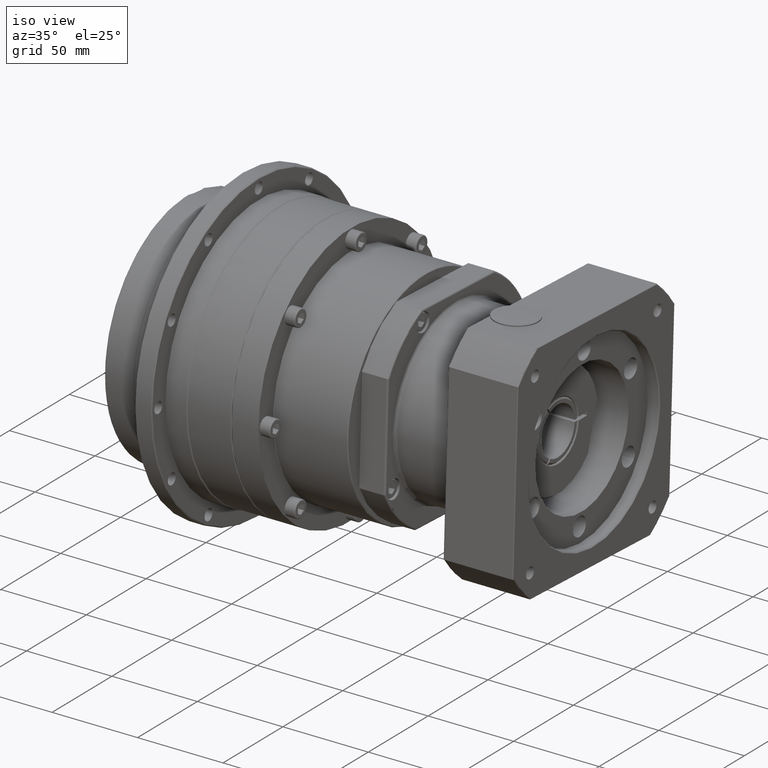
[diagram: clean part render]
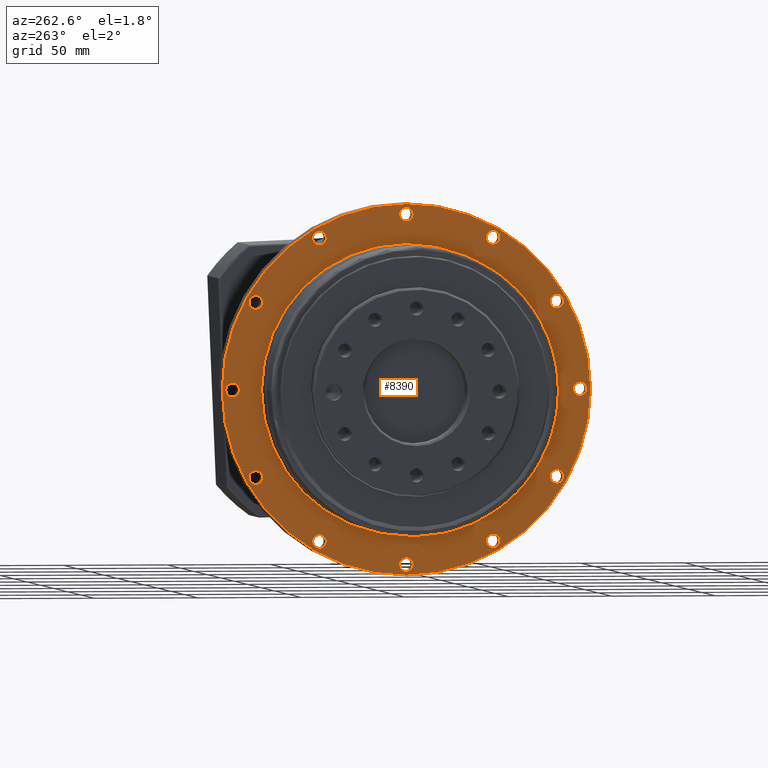
[diagram: tour spotlight — one face highlighted and labeled with its STEP entity id]
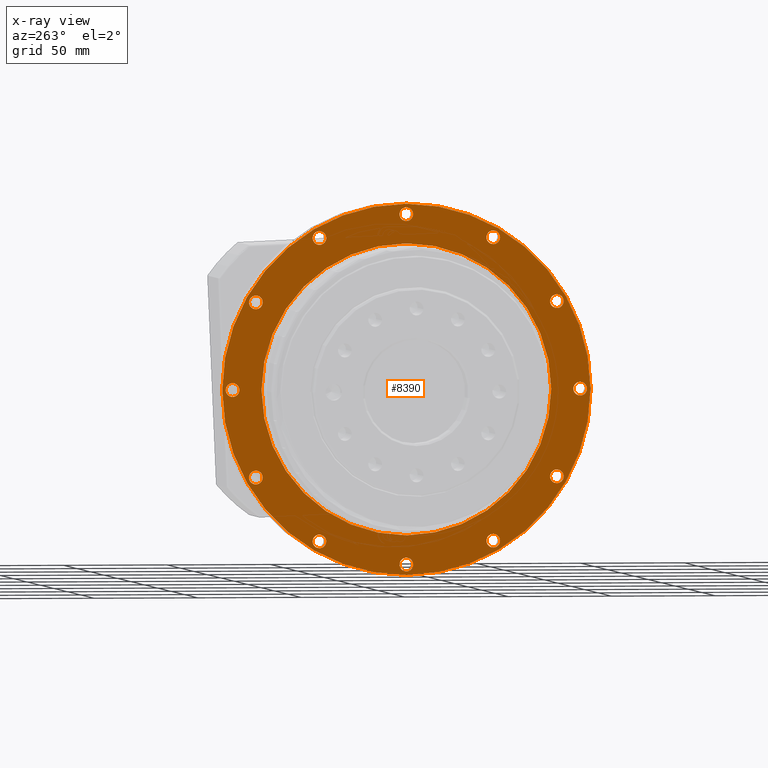
[diagram: x-ray of the same camera — body ghosted, this tour face saturated]
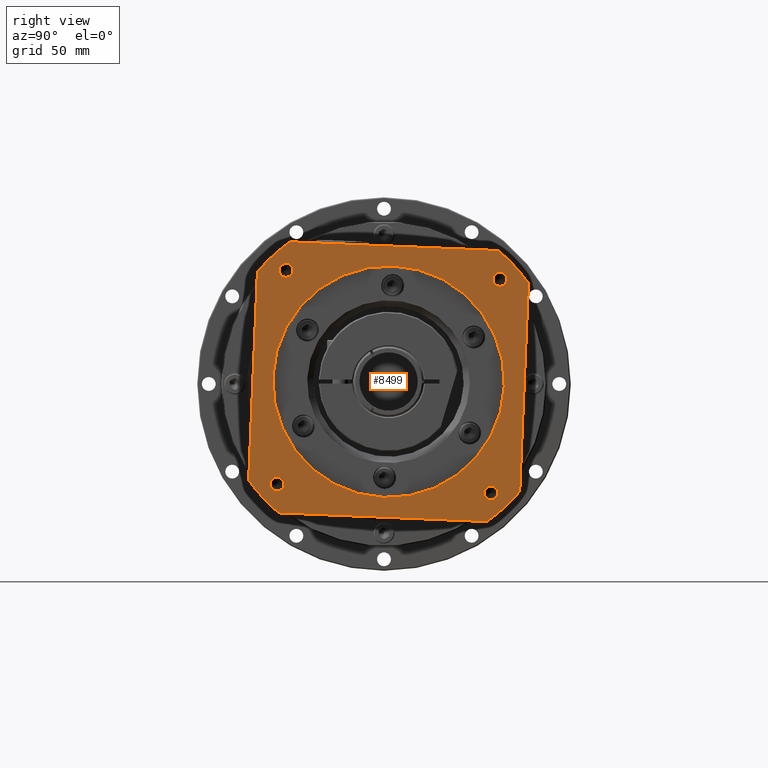
[diagram: tour spotlight — one face highlighted and labeled with its STEP entity id]
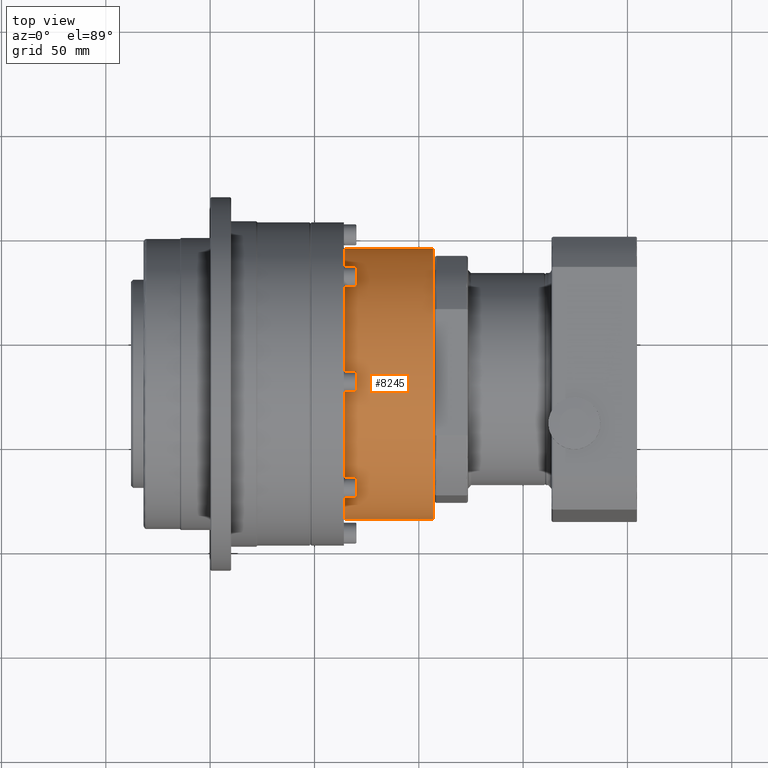
[diagram: tour spotlight — one face highlighted and labeled with its STEP entity id]
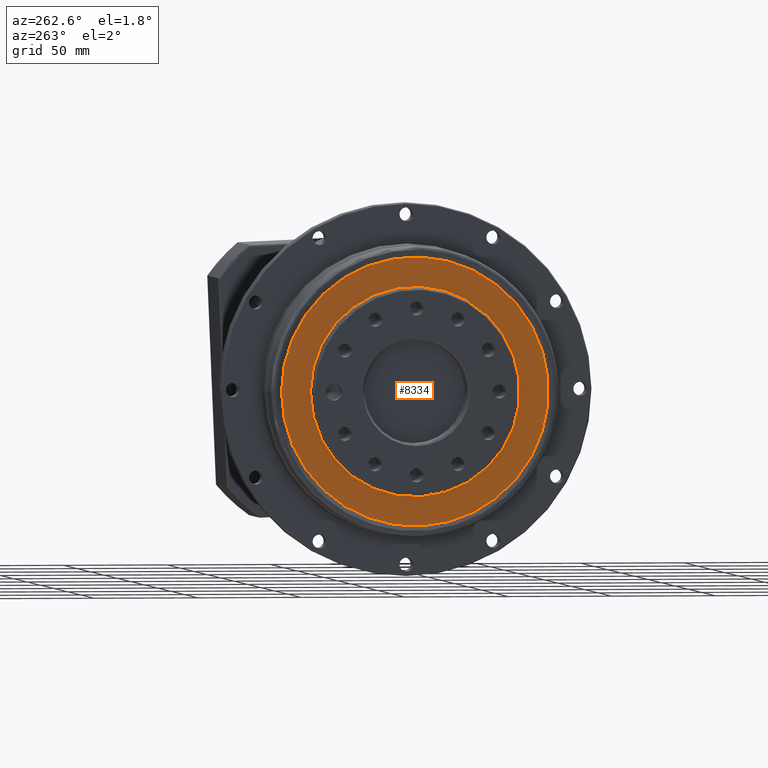
[diagram: tour spotlight — one face highlighted and labeled with its STEP entity id]
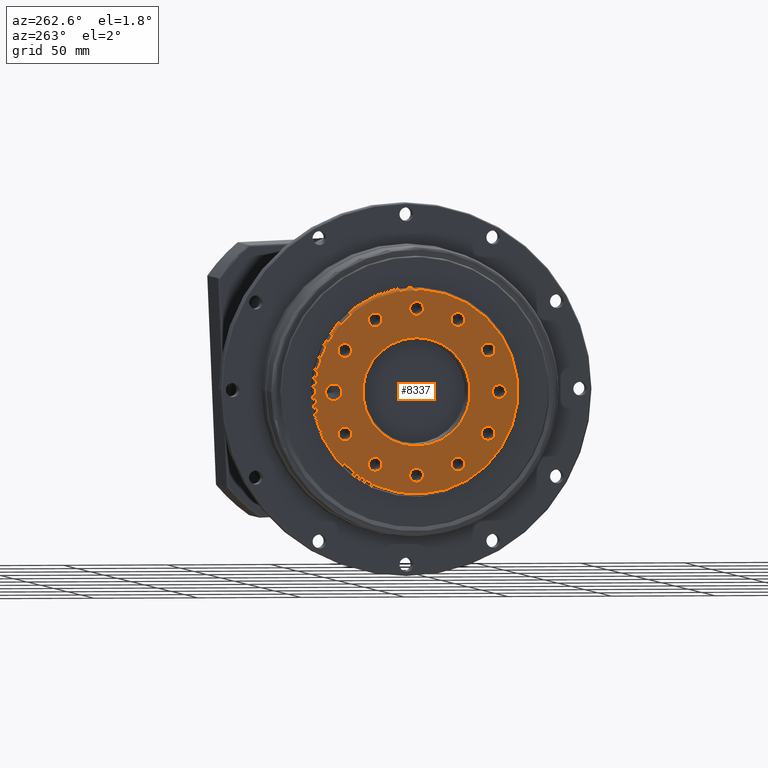
[diagram: tour spotlight — one face highlighted and labeled with its STEP entity id]
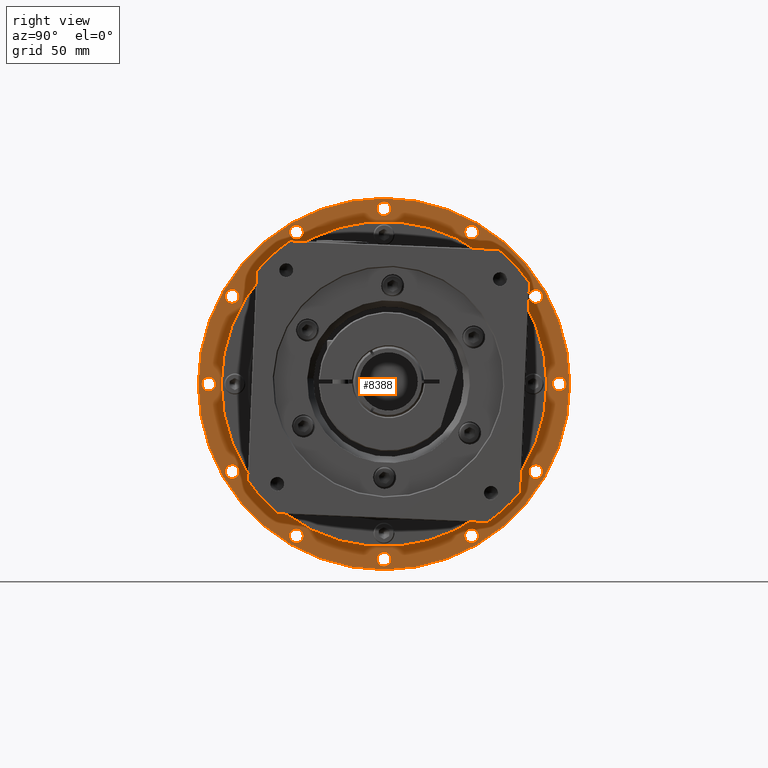
[diagram: tour spotlight — one face highlighted and labeled with its STEP entity id]
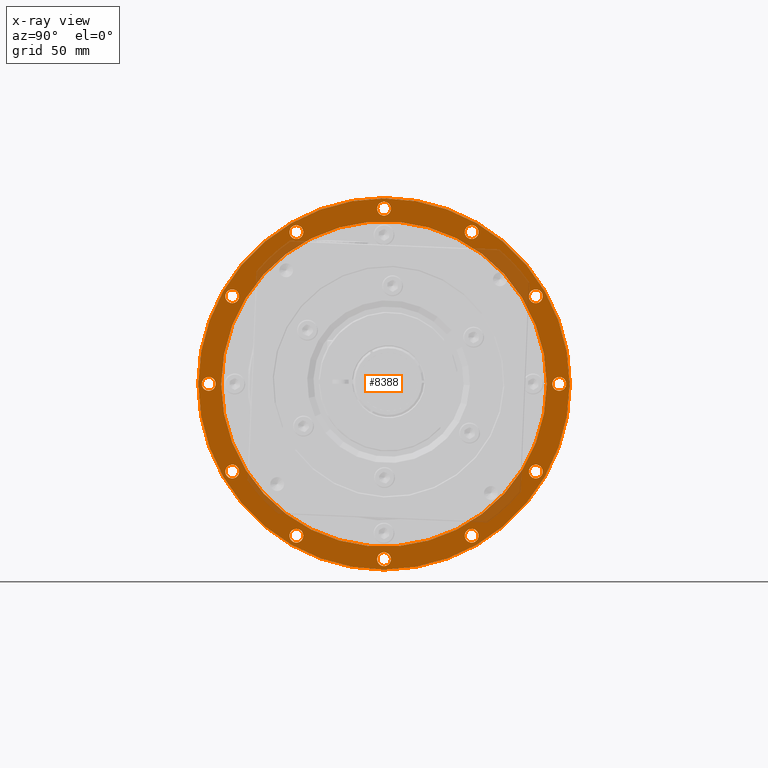
[diagram: x-ray of the same camera — body ghosted, this tour face saturated]
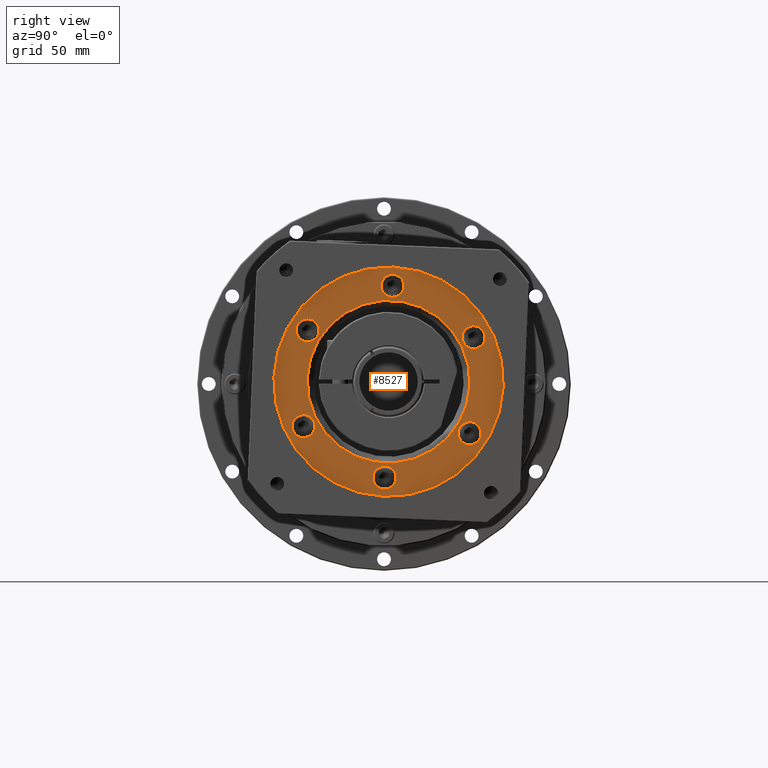
[diagram: tour spotlight — one face highlighted and labeled with its STEP entity id]
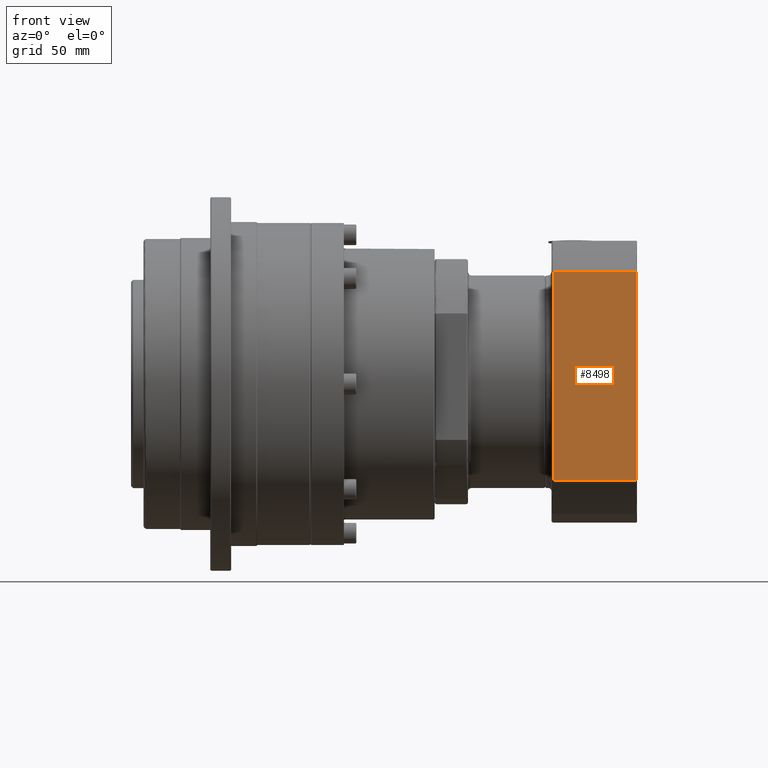
[diagram: tour spotlight — one face highlighted and labeled with its STEP entity id]
A machine part: a face-by-face anatomy tour. The part has 598 B-rep faces; the first image is the clean iso view, then the 8 largest visible faces are spotlighted one at a time (largest first), each with its STEP entity span.

Face 1 — auxiliary view, entity #8390. An x-ray twin of the same camera follows (body ghosted, this face saturated) — the face is partly hidden behind the body. In plain terms, the highlighted planar face has unit normal (-1, -0, -0).
Definition (entity closure, byte-faithful):
#396=PLANE('',#9261);
#805=FACE_BOUND('',#2041,.T.);
#806=FACE_BOUND('',#2042,.T.);
#807=FACE_BOUND('',#2043,.T.);
#808=FACE_BOUND('',#2044,.T.);
#809=FACE_BOUND('',#2045,.T.);
#810=FACE_BOUND('',#2046,.T.);
#811=FACE_BOUND('',#2047,.T.);
#812=FACE_BOUND('',#2048,.T.);
#813=FACE_BOUND('',#2049,.T.);
#814=FACE_BOUND('',#2050,.T.);
#815=FACE_BOUND('',#2051,.T.);
#816=FACE_BOUND('',#2052,.T.);
#817=FACE_BOUND('',#2053,.T.);
#1281=FACE_OUTER_BOUND('',#2040,.T.);
#2040=EDGE_LOOP('',(#6484));
#2041=EDGE_LOOP('',(#6485));
#2042=EDGE_LOOP('',(#6486));
#2043=EDGE_LOOP('',(#6487));
#2044=EDGE_LOOP('',(#6488));
#2045=EDGE_LOOP('',(#6489));
#2046=EDGE_LOOP('',(#6490));
#2047=EDGE_LOOP('',(#6491));
#2048=EDGE_LOOP('',(#6492));
#2049=EDGE_LOOP('',(#6493));
#2050=EDGE_LOOP('',(#6494));
#2051=EDGE_LOOP('',(#6495));
#2052=EDGE_LOOP('',(#6496));
#2053=EDGE_LOOP('',(#6497));
#2769=CIRCLE('',#9206,3.3);
#2771=CIRCLE('',#9209,3.3);
#2773=CIRCLE('',#9212,3.3);
#2775=CIRCLE('',#9215,3.3);
#2777=CIRCLE('',#9218,3.3);
#2779=CIRCLE('',#9221,3.3);
#2781=CIRCLE('',#9224,3.3);
#2783=CIRCLE('',#9227,3.3);
#2785=CIRCLE('',#9230,3.3);
#2787=CIRCLE('',#9233,3.3);
#2789=CIRCLE('',#9236,3.3);
#2791=CIRCLE('',#9239,3.3);
#2803=CIRCLE('',#9260,89.);
#2804=CIRCLE('',#9262,70.);
#4117=VERTEX_POINT('',#13609);
#4119=VERTEX_POINT('',#13614);
#4121=VERTEX_POINT('',#13619);
#4123=VERTEX_POINT('',#13624);
#4125=VERTEX_POINT('',#13629);
#4127=VERTEX_POINT('',#13634);
#4129=VERTEX_POINT('',#13639);
#4131=VERTEX_POINT('',#13644);
#4133=VERTEX_POINT('',#13649);
#4135=VERTEX_POINT('',#13654);
#4137=VERTEX_POINT('',#13659);
#4139=VERTEX_POINT('',#13664);
#4151=VERTEX_POINT('',#13697);
#4152=VERTEX_POINT('',#13700);
#4991=EDGE_CURVE('',#4117,#4117,#2769,.T.);
#4993=EDGE_CURVE('',#4119,#4119,#2771,.T.);
#4995=EDGE_CURVE('',#4121,#4121,#2773,.T.);
#4997=EDGE_CURVE('',#4123,#4123,#2775,.T.);
#4999=EDGE_CURVE('',#4125,#4125,#2777,.T.);
#5001=EDGE_CURVE('',#4127,#4127,#2779,.T.);
#5003=EDGE_CURVE('',#4129,#4129,#2781,.T.);
#5005=EDGE_CURVE('',#4131,#4131,#2783,.T.);
#5007=EDGE_CURVE('',#4133,#4133,#2785,.T.);
#5009=EDGE_CURVE('',#4135,#4135,#2787,.T.);
#5011=EDGE_CURVE('',#4137,#4137,#2789,.T.);
#5013=EDGE_CURVE('',#4139,#4139,#2791,.T.);
#5025=EDGE_CURVE('',#4151,#4151,#2803,.T.);
#5026=EDGE_CURVE('',#4152,#4152,#2804,.T.);
#6484=ORIENTED_EDGE('',*,*,#5025,.F.);
#6485=ORIENTED_EDGE('',*,*,#4991,.T.);
#6486=ORIENTED_EDGE('',*,*,#4993,.T.);
#6487=ORIENTED_EDGE('',*,*,#4995,.T.);
#6488=ORIENTED_EDGE('',*,*,#4997,.T.);
#6489=ORIENTED_EDGE('',*,*,#4999,.T.);
#6490=ORIENTED_EDGE('',*,*,#5001,.T.);
#6491=ORIENTED_EDGE('',*,*,#5003,.T.);
#6492=ORIENTED_EDGE('',*,*,#5005,.T.);
#6493=ORIENTED_EDGE('',*,*,#5007,.T.);
#6494=ORIENTED_EDGE('',*,*,#5009,.T.);
#6495=ORIENTED_EDGE('',*,*,#5011,.T.);
#6496=ORIENTED_EDGE('',*,*,#5013,.T.);
#6497=ORIENTED_EDGE('',*,*,#5026,.T.);
#8390=ADVANCED_FACE('',(#1281,#805,#806,#807,#808,#809,#810,#811,#812,#813,
#814,#815,#816,#817),#396,.T.);
#9206=AXIS2_PLACEMENT_3D('',#13610,#10917,#10918);
#9209=AXIS2_PLACEMENT_3D('',#13615,#10923,#10924);
#9212=AXIS2_PLACEMENT_3D('',#13620,#10929,#10930);
#9215=AXIS2_PLACEMENT_3D('',#13625,#10935,#10936);
#9218=AXIS2_PLACEMENT_3D('',#13630,#10941,#10942);
#9221=AXIS2_PLACEMENT_3D('',#13635,#10947,#10948);
#9224=AXIS2_PLACEMENT_3D('',#13640,#10953,#10954);
#9227=AXIS2_PLACEMENT_3D('',#13645,#10959,#10960);
#9230=AXIS2_PLACEMENT_3D('',#13650,#10965,#10966);
#9233=AXIS2_PLACEMENT_3D('',#13655,#10971,#10972);
#9236=AXIS2_PLACEMENT_3D('',#13660,#10977,#10978);
#9239=AXIS2_PLACEMENT_3D('',#13665,#10983,#10984);
#9260=AXIS2_PLACEMENT_3D('',#13698,#11025,#11026);
#9261=AXIS2_PLACEMENT_3D('',#13699,#11027,#11028);
#9262=AXIS2_PLACEMENT_3D('',#13701,#11029,#11030);
#10917=DIRECTION('center_axis',(1.,1.30207664357906E-15,2.17162238525609E-15));
#10918=DIRECTION('ref_axis',(2.4704861348909E-15,-0.500000000000001,-0.866025403784438));
#10923=DIRECTION('center_axis',(1.,1.30207664357906E-15,2.17162238525609E-15));
#10924=DIRECTION('ref_axis',(2.10738511976939E-15,-0.866025403784439,-0.499999999999998));
#10929=DIRECTION('center_axis',(1.,1.30207664357906E-15,2.17162238525609E-15));
#10930=DIRECTION('ref_axis',(1.17961196366432E-15,-1.,1.22242051126067E-15));
#10935=DIRECTION('center_axis',(1.,1.30207664357906E-15,2.17162238525609E-15));
#10936=DIRECTION('ref_axis',(-6.42372654866977E-17,-0.866025403784438,0.500000000000001));
#10941=DIRECTION('center_axis',(1.,1.30207664357906E-15,2.17162238525609E-15));
#10942=DIRECTION('ref_axis',(-1.29087417122657E-15,-0.499999999999999,0.866025403784439));
#10947=DIRECTION('center_axis',(1.,1.30207664357906E-15,2.17162238525609E-15));
#10948=DIRECTION('ref_axis',(-2.17162238525609E-15,1.13831270636482E-15,
1.));
#10953=DIRECTION('center_axis',(1.,1.30207664357906E-15,2.17162238525609E-15));
#10954=DIRECTION('ref_axis',(-2.47048613489089E-15,0.500000000000001,0.866025403784438));
#10959=DIRECTION('center_axis',(1.,1.30207664357906E-15,2.17162238525609E-15));
#10960=DIRECTION('ref_axis',(-2.1073851197694E-15,0.866025403784439,0.499999999999999));
#10965=DIRECTION('center_axis',(1.,1.30207664357906E-15,2.17162238525609E-15));
#10966=DIRECTION('ref_axis',(-1.17961196366432E-15,1.,-1.05420490146898E-15));
#10971=DIRECTION('center_axis',(1.,1.30207664357906E-15,2.17162238525609E-15));
#10972=DIRECTION('ref_axis',(6.42372654866966E-17,0.866025403784438,-0.500000000000001));
#10977=DIRECTION('center_axis',(1.,1.30207664357906E-15,2.17162238525609E-15));
#10978=DIRECTION('ref_axis',(1.29087417122657E-15,0.499999999999999,-0.866025403784439));
#10983=DIRECTION('center_axis',(1.,1.30207664357906E-15,2.17162238525609E-15));
#10984=DIRECTION('ref_axis',(2.17162238525609E-15,-9.7009709657313E-16,
-1.));
#11025=DIRECTION('center_axis',(1.,1.30207664357906E-15,2.17162238525609E-15));
#11026=DIRECTION('ref_axis',(1.30207664357906E-15,-1.,9.70097096573133E-16));
#11027=DIRECTION('center_axis',(-1.,-1.30207664357906E-15,-2.17162238525609E-15));
#11028=DIRECTION('ref_axis',(-2.8421709430404E-15,1.4210854715202E-15,1.));
#11029=DIRECTION('center_axis',(1.,1.30207664357906E-15,2.17162238525609E-15));
#11030=DIRECTION('ref_axis',(2.17162238525609E-15,-9.7009709657313E-16,
-1.));
#13609=CARTESIAN_POINT('',(-149.929808100276,54.1660976709853,-46.754326655336));
#13610=CARTESIAN_POINT('Origin',(-149.929808100276,52.5160976709853,-49.6122104878246));
#13614=CARTESIAN_POINT('',(-149.929808100276,24.627847585581,-78.7083444057174));
#13615=CARTESIAN_POINT('Origin',(-149.929808100276,21.7699637530924,-80.3583444057174));
#13619=CARTESIAN_POINT('',(-149.929808100276,-16.9300362469076,-91.6122104878245));
#13620=CARTESIAN_POINT('Origin',(-149.929808100276,-20.2300362469076,-91.6122104878245));
#13624=CARTESIAN_POINT('',(-149.929808100276,-59.372152414419,-82.0083444057173));
#13625=CARTESIAN_POINT('Origin',(-149.929808100276,-62.2300362469076,-80.3583444057173));
#13629=CARTESIAN_POINT('',(-149.929808100276,-91.3261701648004,-52.4700943203131));
#13630=CARTESIAN_POINT('Origin',(-149.929808100276,-92.9761701648004,-49.6122104878244));
#13634=CARTESIAN_POINT('',(-149.929808100276,-104.230036246908,-10.9122104878244));
#13635=CARTESIAN_POINT('Origin',(-149.929808100276,-104.230036246908,-7.61221048782442));
#13639=CARTESIAN_POINT('',(-149.929808100276,-94.6261701648003,31.5299056796869));
#13640=CARTESIAN_POINT('Origin',(-149.929808100276,-92.9761701648003,34.3877895121756));
#13644=CARTESIAN_POINT('',(-149.929808100276,-65.0879200793961,63.4839234300684));
#13645=CARTESIAN_POINT('Origin',(-149.929808100276,-62.2300362469074,65.1339234300684));
#13649=CARTESIAN_POINT('',(-149.929808100276,-23.5300362469074,76.3877895121755));
#13650=CARTESIAN_POINT('Origin',(-149.929808100276,-20.2300362469074,76.3877895121755));
#13654=CARTESIAN_POINT('',(-149.929808100276,18.9120799206039,66.7839234300683));
#13655=CARTESIAN_POINT('Origin',(-149.929808100276,21.7699637530926,65.1339234300683));
#13659=CARTESIAN_POINT('',(-149.929808100276,50.8660976709854,37.2456733446641));
#13660=CARTESIAN_POINT('Origin',(-149.929808100276,52.5160976709854,34.3877895121754));
#13664=CARTESIAN_POINT('',(-149.929808100276,63.7699637530925,-4.31221048782459));
#13665=CARTESIAN_POINT('Origin',(-149.929808100276,63.7699637530925,-7.61221048782459));
#13697=CARTESIAN_POINT('',(-149.929808100276,68.7699637530925,-7.61221048782459));
#13698=CARTESIAN_POINT('Origin',(-149.929808100276,-20.2300362469075,-7.61221048782451));
#13699=CARTESIAN_POINT('Origin',(-149.929808100276,69.2699637530925,-7.6122104878246));
#13700=CARTESIAN_POINT('',(-149.929808100276,49.7699637530925,-7.61221048782458));
#13701=CARTESIAN_POINT('Origin',(-149.929808100276,-20.2300362469075,-7.61221048782451));

Face 2 — right view, entity #8499. In plain terms, the highlighted planar face has unit normal (1, 0, 0).
Definition (entity closure, byte-faithful):
#456=PLANE('',#9424);
#851=FACE_BOUND('',#2196,.T.);
#852=FACE_BOUND('',#2197,.T.);
#853=FACE_BOUND('',#2198,.T.);
#854=FACE_BOUND('',#2199,.T.);
#855=FACE_BOUND('',#2200,.T.);
#1390=FACE_OUTER_BOUND('',#2195,.T.);
#2195=EDGE_LOOP('',(#6929,#6930,#6931,#6932,#6933,#6934,#6935,#6936));
#2196=EDGE_LOOP('',(#6937));
#2197=EDGE_LOOP('',(#6938));
#2198=EDGE_LOOP('',(#6939));
#2199=EDGE_LOOP('',(#6940));
#2200=EDGE_LOOP('',(#6941));
#2852=CIRCLE('',#9410,82.);
#2853=CIRCLE('',#9413,82.);
#2855=CIRCLE('',#9417,82.);
#2857=CIRCLE('',#9421,82.);
#2858=CIRCLE('',#9425,55.5);
#2859=CIRCLE('',#9426,3.3235);
#2860=CIRCLE('',#9427,3.3235);
#2861=CIRCLE('',#9428,3.3235);
#2862=CIRCLE('',#9429,3.3235);
#3330=LINE('',#14365,#3696);
#3331=LINE('',#14401,#3697);
#3334=LINE('',#14440,#3700);
#3335=LINE('',#14473,#3701);
#3696=VECTOR('',#11434,99.9799979995997);
#3697=VECTOR('',#11443,99.9799979995998);
#3700=VECTOR('',#11454,99.9799979995998);
#3701=VECTOR('',#11461,99.9799979995998);
#4293=VERTEX_POINT('',#14332);
#4294=VERTEX_POINT('',#14333);
#4295=VERTEX_POINT('',#14364);
#4296=VERTEX_POINT('',#14381);
#4298=VERTEX_POINT('',#14400);
#4300=VERTEX_POINT('',#14419);
#4302=VERTEX_POINT('',#14439);
#4303=VERTEX_POINT('',#14456);
#4304=VERTEX_POINT('',#14477);
#4305=VERTEX_POINT('',#14479);
#4306=VERTEX_POINT('',#14481);
#4307=VERTEX_POINT('',#14483);
#4308=VERTEX_POINT('',#14485);
#5229=EDGE_CURVE('',#4293,#4294,#2852,.T.);
#5232=EDGE_CURVE('',#4294,#4295,#3330,.T.);
#5234=EDGE_CURVE('',#4295,#4296,#2853,.T.);
#5237=EDGE_CURVE('',#4296,#4298,#3331,.T.);
#5240=EDGE_CURVE('',#4298,#4300,#2855,.T.);
#5244=EDGE_CURVE('',#4300,#4302,#3334,.T.);
#5246=EDGE_CURVE('',#4302,#4303,#2857,.T.);
#5248=EDGE_CURVE('',#4303,#4293,#3335,.T.);
#5250=EDGE_CURVE('',#4304,#4304,#2858,.T.);
#5251=EDGE_CURVE('',#4305,#4305,#2859,.T.);
#5252=EDGE_CURVE('',#4306,#4306,#2860,.T.);
#5253=EDGE_CURVE('',#4307,#4307,#2861,.T.);
#5254=EDGE_CURVE('',#4308,#4308,#2862,.T.);
#6929=ORIENTED_EDGE('',*,*,#5229,.F.);
#6930=ORIENTED_EDGE('',*,*,#5248,.F.);
#6931=ORIENTED_EDGE('',*,*,#5246,.F.);
#6932=ORIENTED_EDGE('',*,*,#5244,.F.);
#6933=ORIENTED_EDGE('',*,*,#5240,.F.);
#6934=ORIENTED_EDGE('',*,*,#5237,.F.);
#6935=ORIENTED_EDGE('',*,*,#5234,.F.);
#6936=ORIENTED_EDGE('',*,*,#5232,.F.);
#6937=ORIENTED_EDGE('',*,*,#5250,.F.);
#6938=ORIENTED_EDGE('',*,*,#5251,.T.);
#6939=ORIENTED_EDGE('',*,*,#5252,.T.);
#6940=ORIENTED_EDGE('',*,*,#5253,.T.);
#6941=ORIENTED_EDGE('',*,*,#5254,.T.);
#8499=ADVANCED_FACE('',(#1390,#851,#852,#853,#854,#855),#456,.T.);
#9410=AXIS2_PLACEMENT_3D('',#14334,#11430,#11431);
#9413=AXIS2_PLACEMENT_3D('',#14382,#11437,#11438);
#9417=AXIS2_PLACEMENT_3D('',#14420,#11447,#11448);
#9421=AXIS2_PLACEMENT_3D('',#14457,#11457,#11458);
#9424=AXIS2_PLACEMENT_3D('',#14476,#11465,#11466);
#9425=AXIS2_PLACEMENT_3D('',#14478,#11467,#11468);
#9426=AXIS2_PLACEMENT_3D('',#14480,#11469,#11470);
#9427=AXIS2_PLACEMENT_3D('',#14482,#11471,#11472);
#9428=AXIS2_PLACEMENT_3D('',#14484,#11473,#11474);
#9429=AXIS2_PLACEMENT_3D('',#14486,#11475,#11476);
#11430=DIRECTION('center_axis',(-1.,-1.15011921548548E-15,-2.13743306329917E-15));
#11431=DIRECTION('ref_axis',(-2.29334620408986E-15,0.736122868240174,0.67684793185313));
#11434=DIRECTION('',(2.18376052323304E-15,-0.0419137094736798,-0.999121234364557));
#11437=DIRECTION('center_axis',(-1.,-1.15011921548548E-15,-2.13743306329917E-15));
#11438=DIRECTION('ref_axis',(7.94957544841273E-16,0.67684793185313,-0.736122868240174));
#11443=DIRECTION('',(1.05952078180769E-15,-0.999121234364557,0.0419137094736797));
#11447=DIRECTION('center_axis',(-1.,-1.15011921548548E-15,-2.13743306329917E-15));
#11448=DIRECTION('ref_axis',(2.29334620408986E-15,-0.736122868240174,-0.67684793185313));
#11454=DIRECTION('',(-2.18376052323304E-15,0.0419137094736797,0.999121234364557));
#11457=DIRECTION('center_axis',(-1.,-1.15011921548548E-15,-2.13743306329917E-15));
#11458=DIRECTION('ref_axis',(-7.94957544841273E-16,-0.67684793185313,0.736122868240174));
#11461=DIRECTION('',(-1.05952078180769E-15,0.999121234364557,-0.0419137094736796));
#11465=DIRECTION('center_axis',(1.,1.15011921548548E-15,2.13743306329917E-15));
#11466=DIRECTION('ref_axis',(-2.1316282072803E-15,0.0419137094736797,0.999121234364557));
#11467=DIRECTION('center_axis',(1.,1.15011921548548E-15,2.13743306329917E-15));
#11468=DIRECTION('ref_axis',(-1.05952078180769E-15,0.999121234364557,-0.0419137094736797));
#11469=DIRECTION('center_axis',(-1.,-1.15011921548548E-15,-2.13743306329917E-15));
#11470=DIRECTION('ref_axis',(-1.05952078180769E-15,0.999121234364557,-0.04191370947368));
#11471=DIRECTION('center_axis',(-1.,-1.15011921548548E-15,-2.13743306329917E-15));
#11472=DIRECTION('ref_axis',(2.18376052323304E-15,-0.0419137094736799,-0.999121234364557));
#11473=DIRECTION('center_axis',(-1.,-1.15011921548548E-15,-2.13743306329917E-15));
#11474=DIRECTION('ref_axis',(1.05952078180769E-15,-0.999121234364557,0.0419137094736799));
#11475=DIRECTION('center_axis',(-1.,-1.15011921548548E-15,-2.13743306329917E-15));
#11476=DIRECTION('ref_axis',(-2.18376052323304E-15,0.0419137094736798,0.999121234364557));
#14332=CARTESIAN_POINT('',(54.5701918997235,34.6243256657889,56.3503924096133));
#14333=CARTESIAN_POINT('',(54.5701918997236,48.9920115718001,40.7244568613581));
#14334=CARTESIAN_POINT('Origin',(54.5701918997237,-18.0461349565633,-6.49722152941576));
#14364=CARTESIAN_POINT('',(54.5701918997238,44.8014789824658,-59.167682151768));
#14365=CARTESIAN_POINT('',(54.5701918997236,48.2694192623959,23.4996077802343));
#14381=CARTESIAN_POINT('',(54.5701918997238,29.1755434342106,-73.5353680577791));
#14382=CARTESIAN_POINT('Origin',(54.5701918997237,-18.0461349565633,-6.49722152941576));
#14400=CARTESIAN_POINT('',(54.5701918997239,-70.7165955789155,-69.3448354684448));
#14401=CARTESIAN_POINT('',(54.5701918997238,11.9506943530868,-72.812775748375));
#14419=CARTESIAN_POINT('',(54.5701918997239,-85.0842814849267,-53.7188999201896));
#14420=CARTESIAN_POINT('Origin',(54.5701918997237,-18.0461349565633,-6.49722152941576));
#14439=CARTESIAN_POINT('',(54.5701918997237,-80.8937488955924,46.1732390929365));
#14440=CARTESIAN_POINT('',(54.5701918997239,-84.3616891755225,-36.4940508390658));
#14456=CARTESIAN_POINT('',(54.5701918997236,-65.2678133473372,60.5409249989476));
#14457=CARTESIAN_POINT('Origin',(54.5701918997237,-18.0461349565633,-6.49722152941576));
#14473=CARTESIAN_POINT('',(54.5701918997236,-48.0429642662133,59.8183326895435));
#14476=CARTESIAN_POINT('Origin',(54.5701918997237,-18.0461349565633,-6.49722152941577));
#14477=CARTESIAN_POINT('',(54.5701918997238,-73.4973634637962,-4.17101065362655));
#14478=CARTESIAN_POINT('Origin',(54.5701918997237,-18.0461349565633,-6.49722152941577));
#14479=CARTESIAN_POINT('',(54.5701918997238,34.3459195251993,-60.0054296902642));
#14480=CARTESIAN_POINT('Origin',(54.5701918997238,31.0253401027886,-59.8661294768284));
#14481=CARTESIAN_POINT('',(54.5701918997239,-71.5543431174117,-58.8892760111783));
#14482=CARTESIAN_POINT('Origin',(54.5701918997239,-71.4150429039759,-55.5686965887677));
#14483=CARTESIAN_POINT('',(54.5701918997237,-70.4381894383259,47.0109866314326));
#14484=CARTESIAN_POINT('Origin',(54.5701918997237,-67.1176100159152,46.8716864179968));
#14485=CARTESIAN_POINT('',(54.5701918997236,35.4620732042851,45.8948329523468));
#14486=CARTESIAN_POINT('Origin',(54.5701918997236,35.3227729908493,42.5742535299362));

Face 3 — top view, entity #8245. In plain terms, the highlighted cylindrical surface (bore or boss wall) has radius 65 mm, axis along (1, -0, 0).
Definition (entity closure, byte-faithful):
#708=FACE_BOUND('',#1799,.T.);
#1136=FACE_OUTER_BOUND('',#1798,.T.);
#1798=EDGE_LOOP('',(#6010));
#1799=EDGE_LOOP('',(#6011));
#2706=CIRCLE('',#9018,65.);
#2709=CIRCLE('',#9022,65.);
#3962=VERTEX_POINT('',#13024);
#3963=VERTEX_POINT('',#13029);
#4782=EDGE_CURVE('',#3962,#3962,#2706,.T.);
#4785=EDGE_CURVE('',#3963,#3963,#2709,.T.);
#6010=ORIENTED_EDGE('',*,*,#4785,.F.);
#6011=ORIENTED_EDGE('',*,*,#4782,.F.);
#7555=CYLINDRICAL_SURFACE('',#9021,65.);
#8245=ADVANCED_FACE('',(#1136,#708),#7555,.T.);
#9018=AXIS2_PLACEMENT_3D('',#13025,#10443,#10444);
#9021=AXIS2_PLACEMENT_3D('',#13028,#10449,#10450);
#9022=AXIS2_PLACEMENT_3D('',#13030,#10451,#10452);
#10443=DIRECTION('center_axis',(1.,-1.69106409014785E-16,2.57789637496635E-15));
#10444=DIRECTION('ref_axis',(-1.8420936882788E-16,-1.,9.99200722162645E-16));
#10449=DIRECTION('center_axis',(1.,-1.69106409014785E-16,2.57789637496635E-15));
#10450=DIRECTION('ref_axis',(1.8420936882788E-16,1.,-9.99200722162645E-16));
#10451=DIRECTION('center_axis',(-1.,1.69106409014785E-16,-2.57789637496635E-15));
#10452=DIRECTION('ref_axis',(-1.6961855867356E-16,-1.,1.18289774203475E-15));
#13024=CARTESIAN_POINT('',(-42.9298081002762,44.7699637530928,-7.61221048782433));
#13025=CARTESIAN_POINT('Origin',(-42.9298081002762,-20.2300362469072,-7.61221048782427));
#13028=CARTESIAN_POINT('Origin',(-64.1798081002762,-20.2300362469072,-7.61221048782433));
#13029=CARTESIAN_POINT('',(-85.4298081002762,44.7699637530928,-7.61221048782447));
#13030=CARTESIAN_POINT('Origin',(-85.4298081002762,-20.2300362469072,-7.61221048782438));

Face 4 — auxiliary view, entity #8334. In plain terms, the highlighted planar face has unit normal (-1, -0, -0).
Definition (entity closure, byte-faithful):
#391=PLANE('',#9137);
#738=FACE_BOUND('',#1918,.T.);
#1225=FACE_OUTER_BOUND('',#1917,.T.);
#1917=EDGE_LOOP('',(#6361));
#1918=EDGE_LOOP('',(#6362));
#2735=CIRCLE('',#9136,50.5);
#2736=CIRCLE('',#9138,64.5);
#4083=VERTEX_POINT('',#13505);
#4084=VERTEX_POINT('',#13508);
#4957=EDGE_CURVE('',#4083,#4083,#2735,.T.);
#4958=EDGE_CURVE('',#4084,#4084,#2736,.T.);
#6361=ORIENTED_EDGE('',*,*,#4958,.F.);
#6362=ORIENTED_EDGE('',*,*,#4957,.F.);
#8334=ADVANCED_FACE('',(#1225,#738),#391,.T.);
#9136=AXIS2_PLACEMENT_3D('',#13506,#10777,#10778);
#9137=AXIS2_PLACEMENT_3D('',#13507,#10779,#10780);
#9138=AXIS2_PLACEMENT_3D('',#13509,#10781,#10782);
#10777=DIRECTION('center_axis',(-1.,-6.66133814775131E-16,-2.05077455693759E-15));
#10778=DIRECTION('ref_axis',(6.66133814775131E-16,-1.,8.70621926339705E-17));
#10779=DIRECTION('center_axis',(-1.,-6.66133814775131E-16,-2.05077455693759E-15));
#10780=DIRECTION('ref_axis',(-2.8421709430404E-15,0.,1.));
#10781=DIRECTION('center_axis',(1.,6.66133814775131E-16,2.05077455693759E-15));
#10782=DIRECTION('ref_axis',(6.66133814775131E-16,-1.,8.70621926339705E-17));
#13505=CARTESIAN_POINT('',(-181.929808100276,30.2699637530925,-7.61221048782459));
#13506=CARTESIAN_POINT('Origin',(-181.929808100276,-20.2300362469075,-7.61221048782458));
#13507=CARTESIAN_POINT('Origin',(-181.929808100276,44.7699637530925,-7.61221048782459));
#13508=CARTESIAN_POINT('',(-181.929808100276,44.2699637530925,-7.61221048782458));
#13509=CARTESIAN_POINT('Origin',(-181.929808100276,-20.2300362469075,-7.61221048782458));

Face 5 — auxiliary view, entity #8337. In plain terms, the highlighted planar face has unit normal (-1, -0, -0).
Definition (entity closure, byte-faithful):
#392=PLANE('',#9143);
#741=FACE_BOUND('',#1924,.T.);
#742=FACE_BOUND('',#1925,.T.);
#743=FACE_BOUND('',#1926,.T.);
#744=FACE_BOUND('',#1927,.T.);
#745=FACE_BOUND('',#1928,.T.);
#746=FACE_BOUND('',#1929,.T.);
#747=FACE_BOUND('',#1930,.T.);
#748=FACE_BOUND('',#1931,.T.);
#749=FACE_BOUND('',#1932,.T.);
#750=FACE_BOUND('',#1933,.T.);
#751=FACE_BOUND('',#1934,.T.);
#752=FACE_BOUND('',#1935,.T.);
#753=FACE_BOUND('',#1936,.T.);
#1228=FACE_OUTER_BOUND('',#1923,.T.);
#1923=EDGE_LOOP('',(#6367));
#1924=EDGE_LOOP('',(#6368));
#1925=EDGE_LOOP('',(#6369));
#1926=EDGE_LOOP('',(#6370));
#1927=EDGE_LOOP('',(#6371));
#1928=EDGE_LOOP('',(#6372));
#1929=EDGE_LOOP('',(#6373));
#1930=EDGE_LOOP('',(#6374));
#1931=EDGE_LOOP('',(#6375));
#1932=EDGE_LOOP('',(#6376));
#1933=EDGE_LOOP('',(#6377));
#1934=EDGE_LOOP('',(#6378));
#1935=EDGE_LOOP('',(#6379));
#1936=EDGE_LOOP('',(#6380));
#2737=CIRCLE('',#9141,49.);
#2739=CIRCLE('',#9144,26.);
#2740=CIRCLE('',#9145,4.);
#2741=CIRCLE('',#9146,3.3235);
#2742=CIRCLE('',#9147,3.3235);
#2743=CIRCLE('',#9148,3.3235);
#2744=CIRCLE('',#9149,3.3235);
#2745=CIRCLE('',#9150,3.3235);
#2746=CIRCLE('',#9151,3.3235);
#2747=CIRCLE('',#9152,3.3235);
#2748=CIRCLE('',#9153,3.3235);
#2749=CIRCLE('',#9154,3.3235);
#2750=CIRCLE('',#9155,3.3235);
#2751=CIRCLE('',#9156,3.3235);
#4085=VERTEX_POINT('',#13512);
#4087=VERTEX_POINT('',#13517);
#4088=VERTEX_POINT('',#13519);
#4089=VERTEX_POINT('',#13521);
#4090=VERTEX_POINT('',#13523);
#4091=VERTEX_POINT('',#13525);
#4092=VERTEX_POINT('',#13527);
#4093=VERTEX_POINT('',#13529);
#4094=VERTEX_POINT('',#13531);
#4095=VERTEX_POINT('',#13533);
#4096=VERTEX_POINT('',#13535);
#4097=VERTEX_POINT('',#13537);
#4098=VERTEX_POINT('',#13539);
#4099=VERTEX_POINT('',#13541);
#4959=EDGE_CURVE('',#4085,#4085,#2737,.T.);
#4961=EDGE_CURVE('',#4087,#4087,#2739,.T.);
#4962=EDGE_CURVE('',#4088,#4088,#2740,.T.);
#4963=EDGE_CURVE('',#4089,#4089,#2741,.T.);
#4964=EDGE_CURVE('',#4090,#4090,#2742,.T.);
#4965=EDGE_CURVE('',#4091,#4091,#2743,.T.);
#4966=EDGE_CURVE('',#4092,#4092,#2744,.T.);
#4967=EDGE_CURVE('',#4093,#4093,#2745,.T.);
#4968=EDGE_CURVE('',#4094,#4094,#2746,.T.);
#4969=EDGE_CURVE('',#4095,#4095,#2747,.T.);
#4970=EDGE_CURVE('',#4096,#4096,#2748,.T.);
#4971=EDGE_CURVE('',#4097,#4097,#2749,.T.);
#4972=EDGE_CURVE('',#4098,#4098,#2750,.T.);
#4973=EDGE_CURVE('',#4099,#4099,#2751,.T.);
#6367=ORIENTED_EDGE('',*,*,#4959,.F.);
#6368=ORIENTED_EDGE('',*,*,#4961,.F.);
#6369=ORIENTED_EDGE('',*,*,#4962,.T.);
#6370=ORIENTED_EDGE('',*,*,#4963,.T.);
#6371=ORIENTED_EDGE('',*,*,#4964,.T.);
#6372=ORIENTED_EDGE('',*,*,#4965,.T.);
#6373=ORIENTED_EDGE('',*,*,#4966,.T.);
#6374=ORIENTED_EDGE('',*,*,#4967,.T.);
#6375=ORIENTED_EDGE('',*,*,#4968,.T.);
#6376=ORIENTED_EDGE('',*,*,#4969,.T.);
#6377=ORIENTED_EDGE('',*,*,#4970,.T.);
#6378=ORIENTED_EDGE('',*,*,#4971,.T.);
#6379=ORIENTED_EDGE('',*,*,#4972,.T.);
#6380=ORIENTED_EDGE('',*,*,#4973,.T.);
#8337=ADVANCED_FACE('',(#1228,#741,#742,#743,#744,#745,#746,#747,#748,#749,
#750,#751,#752,#753),#392,.T.);
#9141=AXIS2_PLACEMENT_3D('',#13513,#10787,#10788);
#9143=AXIS2_PLACEMENT_3D('',#13516,#10791,#10792);
#9144=AXIS2_PLACEMENT_3D('',#13518,#10793,#10794);
#9145=AXIS2_PLACEMENT_3D('',#13520,#10795,#10796);
#9146=AXIS2_PLACEMENT_3D('',#13522,#10797,#10798);
#9147=AXIS2_PLACEMENT_3D('',#13524,#10799,#10800);
#9148=AXIS2_PLACEMENT_3D('',#13526,#10801,#10802);
#9149=AXIS2_PLACEMENT_3D('',#13528,#10803,#10804);
#9150=AXIS2_PLACEMENT_3D('',#13530,#10805,#10806);
#9151=AXIS2_PLACEMENT_3D('',#13532,#10807,#10808);
#9152=AXIS2_PLACEMENT_3D('',#13534,#10809,#10810);
#9153=AXIS2_PLACEMENT_3D('',#13536,#10811,#10812);
#9154=AXIS2_PLACEMENT_3D('',#13538,#10813,#10814);
#9155=AXIS2_PLACEMENT_3D('',#13540,#10815,#10816);
#9156=AXIS2_PLACEMENT_3D('',#13542,#10817,#10818);
#10787=DIRECTION('center_axis',(1.,6.66133814775131E-16,2.05077455693766E-15));
#10788=DIRECTION('ref_axis',(6.66133814775131E-16,-1.,8.70621926339719E-17));
#10791=DIRECTION('center_axis',(-1.,-6.66133814775131E-16,-2.05077455693766E-15));
#10792=DIRECTION('ref_axis',(-2.8421709430404E-15,0.,1.));
#10793=DIRECTION('center_axis',(-1.,-6.66133814775131E-16,-2.05077455693766E-15));
#10794=DIRECTION('ref_axis',(2.05077455693766E-15,-8.70621926339705E-17,
-1.));
#10795=DIRECTION('center_axis',(1.,6.66133814775131E-16,2.05077455693766E-15));
#10796=DIRECTION('ref_axis',(-2.05077455693766E-15,8.70621926339705E-17,
1.));
#10797=DIRECTION('center_axis',(1.,6.66133814775131E-16,2.05077455693766E-15));
#10798=DIRECTION('ref_axis',(-2.05077455693766E-15,8.70621926339705E-17,
1.));
#10799=DIRECTION('center_axis',(1.,6.66133814775131E-16,2.05077455693766E-15));
#10800=DIRECTION('ref_axis',(-2.05077455693766E-15,8.70621926339705E-17,
1.));
#10801=DIRECTION('center_axis',(1.,6.66133814775131E-16,2.05077455693766E-15));
#10802=DIRECTION('ref_axis',(-2.05077455693766E-15,8.70621926339705E-17,
1.));
#10803=DIRECTION('center_axis',(1.,6.66133814775131E-16,2.05077455693766E-15));
#10804=DIRECTION('ref_axis',(-2.05077455693766E-15,8.70621926339705E-17,
1.));
#10805=DIRECTION('center_axis',(1.,6.66133814775131E-16,2.05077455693766E-15));
#10806=DIRECTION('ref_axis',(-2.05077455693766E-15,8.70621926339705E-17,
1.));
#10807=DIRECTION('center_axis',(1.,6.66133814775131E-16,2.05077455693766E-15));
#10808=DIRECTION('ref_axis',(-2.05077455693766E-15,8.70621926339705E-17,
1.));
#10809=DIRECTION('center_axis',(1.,6.66133814775131E-16,2.05077455693766E-15));
#10810=DIRECTION('ref_axis',(-2.05077455693766E-15,8.70621926339705E-17,
1.));
#10811=DIRECTION('center_axis',(1.,6.66133814775131E-16,2.05077455693766E-15));
#10812=DIRECTION('ref_axis',(-2.05077455693766E-15,8.70621926339705E-17,
1.));
#10813=DIRECTION('center_axis',(1.,6.66133814775131E-16,2.05077455693766E-15));
#10814=DIRECTION('ref_axis',(-2.05077455693766E-15,8.70621926339705E-17,
1.));
#10815=DIRECTION('center_axis',(1.,6.66133814775131E-16,2.05077455693766E-15));
#10816=DIRECTION('ref_axis',(-2.05077455693766E-15,8.70621926339705E-17,
1.));
#10817=DIRECTION('center_axis',(1.,6.66133814775131E-16,2.05077455693766E-15));
#10818=DIRECTION('ref_axis',(-2.05077455693766E-15,8.70621926339705E-17,
1.));
#13512=CARTESIAN_POINT('',(-187.929808100276,28.7699637530925,-7.61221048782458));
#13513=CARTESIAN_POINT('Origin',(-187.929808100276,-20.2300362469075,-7.61221048782458));
#13516=CARTESIAN_POINT('Origin',(-187.929808100276,29.7699637530925,-7.61221048782458));
#13517=CARTESIAN_POINT('',(-187.929808100276,-20.2300362469075,18.3877895121754));
#13518=CARTESIAN_POINT('Origin',(-187.929808100276,-20.2300362469075,-7.61221048782458));
#13519=CARTESIAN_POINT('',(-187.929808100276,19.7699637530925,-3.61221048782458));
#13520=CARTESIAN_POINT('Origin',(-187.929808100276,19.7699637530925,-7.61221048782458));
#13521=CARTESIAN_POINT('',(-187.929808100276,14.41097990447,15.7112895121754));
#13522=CARTESIAN_POINT('Origin',(-187.929808100276,14.41097990447,12.3877895121754));
#13523=CARTESIAN_POINT('',(-187.929808100276,-20.2300362469075,35.7112895121754));
#13524=CARTESIAN_POINT('Origin',(-187.929808100276,-20.2300362469075,32.3877895121754));
#13525=CARTESIAN_POINT('',(-187.929808100276,-54.8710523982851,15.7112895121754));
#13526=CARTESIAN_POINT('Origin',(-187.929808100276,-54.8710523982851,12.3877895121754));
#13527=CARTESIAN_POINT('',(-187.929808100276,-40.2300362469076,-38.9297266392021));
#13528=CARTESIAN_POINT('Origin',(-187.929808100276,-40.2300362469076,-42.2532266392021));
#13529=CARTESIAN_POINT('',(-187.929808100276,-0.230036246907537,-38.9297266392021));
#13530=CARTESIAN_POINT('Origin',(-187.929808100276,-0.230036246907537,-42.2532266392021));
#13531=CARTESIAN_POINT('',(-187.929808100276,-60.2300362469075,-4.28871048782458));
#13532=CARTESIAN_POINT('Origin',(-187.929808100276,-60.2300362469075,-7.61221048782458));
#13533=CARTESIAN_POINT('',(-187.929808100276,14.41097990447,-24.2887104878246));
#13534=CARTESIAN_POINT('Origin',(-187.929808100276,14.41097990447,-27.6122104878246));
#13535=CARTESIAN_POINT('',(-187.929808100276,-20.2300362469075,-44.2887104878246));
#13536=CARTESIAN_POINT('Origin',(-187.929808100276,-20.2300362469075,-47.6122104878246));
#13537=CARTESIAN_POINT('',(-187.929808100276,-54.8710523982851,-24.2887104878246));
#13538=CARTESIAN_POINT('Origin',(-187.929808100276,-54.8710523982851,-27.6122104878246));
#13539=CARTESIAN_POINT('',(-187.929808100276,-40.2300362469075,30.352305663553));
#13540=CARTESIAN_POINT('Origin',(-187.929808100276,-40.2300362469075,27.028805663553));
#13541=CARTESIAN_POINT('',(-187.929808100276,-0.230036246907512,30.352305663553));
#13542=CARTESIAN_POINT('Origin',(-187.929808100276,-0.230036246907512,27.028805663553));

Face 6 — right view, entity #8388. An x-ray twin of the same camera follows (body ghosted, this face saturated) — the face is partly hidden behind the body. In plain terms, the highlighted planar face has unit normal (1, 0, 0).
Definition (entity closure, byte-faithful):
#395=PLANE('',#9257);
#791=FACE_BOUND('',#2025,.T.);
#792=FACE_BOUND('',#2026,.T.);
#793=FACE_BOUND('',#2027,.T.);
#794=FACE_BOUND('',#2028,.T.);
#795=FACE_BOUND('',#2029,.T.);
#796=FACE_BOUND('',#2030,.T.);
#797=FACE_BOUND('',#2031,.T.);
#798=FACE_BOUND('',#2032,.T.);
#799=FACE_BOUND('',#2033,.T.);
#800=FACE_BOUND('',#2034,.T.);
#801=FACE_BOUND('',#2035,.T.);
#802=FACE_BOUND('',#2036,.T.);
#803=FACE_BOUND('',#2037,.T.);
#1279=FACE_OUTER_BOUND('',#2024,.T.);
#2024=EDGE_LOOP('',(#6468));
#2025=EDGE_LOOP('',(#6469));
#2026=EDGE_LOOP('',(#6470));
#2027=EDGE_LOOP('',(#6471));
#2028=EDGE_LOOP('',(#6472));
#2029=EDGE_LOOP('',(#6473));
#2030=EDGE_LOOP('',(#6474));
#2031=EDGE_LOOP('',(#6475));
#2032=EDGE_LOOP('',(#6476));
#2033=EDGE_LOOP('',(#6477));
#2034=EDGE_LOOP('',(#6478));
#2035=EDGE_LOOP('',(#6479));
#2036=EDGE_LOOP('',(#6480));
#2037=EDGE_LOOP('',(#6481));
#2770=CIRCLE('',#9207,3.3);
#2772=CIRCLE('',#9210,3.3);
#2774=CIRCLE('',#9213,3.3);
#2776=CIRCLE('',#9216,3.3);
#2778=CIRCLE('',#9219,3.3);
#2780=CIRCLE('',#9222,3.3);
#2782=CIRCLE('',#9225,3.3);
#2784=CIRCLE('',#9228,3.3);
#2786=CIRCLE('',#9231,3.3);
#2788=CIRCLE('',#9234,3.3);
#2790=CIRCLE('',#9237,3.3);
#2792=CIRCLE('',#9240,3.3);
#2800=CIRCLE('',#9254,89.);
#2802=CIRCLE('',#9258,78.);
#4118=VERTEX_POINT('',#13611);
#4120=VERTEX_POINT('',#13616);
#4122=VERTEX_POINT('',#13621);
#4124=VERTEX_POINT('',#13626);
#4126=VERTEX_POINT('',#13631);
#4128=VERTEX_POINT('',#13636);
#4130=VERTEX_POINT('',#13641);
#4132=VERTEX_POINT('',#13646);
#4134=VERTEX_POINT('',#13651);
#4136=VERTEX_POINT('',#13656);
#4138=VERTEX_POINT('',#13661);
#4140=VERTEX_POINT('',#13666);
#4148=VERTEX_POINT('',#13688);
#4150=VERTEX_POINT('',#13694);
#4992=EDGE_CURVE('',#4118,#4118,#2770,.T.);
#4994=EDGE_CURVE('',#4120,#4120,#2772,.T.);
#4996=EDGE_CURVE('',#4122,#4122,#2774,.T.);
#4998=EDGE_CURVE('',#4124,#4124,#2776,.T.);
#5000=EDGE_CURVE('',#4126,#4126,#2778,.T.);
#5002=EDGE_CURVE('',#4128,#4128,#2780,.T.);
#5004=EDGE_CURVE('',#4130,#4130,#2782,.T.);
#5006=EDGE_CURVE('',#4132,#4132,#2784,.T.);
#5008=EDGE_CURVE('',#4134,#4134,#2786,.T.);
#5010=EDGE_CURVE('',#4136,#4136,#2788,.T.);
#5012=EDGE_CURVE('',#4138,#4138,#2790,.T.);
#5014=EDGE_CURVE('',#4140,#4140,#2792,.T.);
#5022=EDGE_CURVE('',#4148,#4148,#2800,.T.);
#5024=EDGE_CURVE('',#4150,#4150,#2802,.T.);
#6468=ORIENTED_EDGE('',*,*,#5022,.F.);
#6469=ORIENTED_EDGE('',*,*,#4992,.T.);
#6470=ORIENTED_EDGE('',*,*,#4994,.T.);
#6471=ORIENTED_EDGE('',*,*,#4996,.T.);
#6472=ORIENTED_EDGE('',*,*,#4998,.T.);
#6473=ORIENTED_EDGE('',*,*,#5000,.T.);
#6474=ORIENTED_EDGE('',*,*,#5002,.T.);
#6475=ORIENTED_EDGE('',*,*,#5004,.T.);
#6476=ORIENTED_EDGE('',*,*,#5006,.T.);
#6477=ORIENTED_EDGE('',*,*,#5008,.T.);
#6478=ORIENTED_EDGE('',*,*,#5010,.T.);
#6479=ORIENTED_EDGE('',*,*,#5012,.T.);
#6480=ORIENTED_EDGE('',*,*,#5014,.T.);
#6481=ORIENTED_EDGE('',*,*,#5024,.F.);
#8388=ADVANCED_FACE('',(#1279,#791,#792,#793,#794,#795,#796,#797,#798,#799,
#800,#801,#802,#803),#395,.T.);
#9207=AXIS2_PLACEMENT_3D('',#13612,#10919,#10920);
#9210=AXIS2_PLACEMENT_3D('',#13617,#10925,#10926);
#9213=AXIS2_PLACEMENT_3D('',#13622,#10931,#10932);
#9216=AXIS2_PLACEMENT_3D('',#13627,#10937,#10938);
#9219=AXIS2_PLACEMENT_3D('',#13632,#10943,#10944);
#9222=AXIS2_PLACEMENT_3D('',#13637,#10949,#10950);
#9225=AXIS2_PLACEMENT_3D('',#13642,#10955,#10956);
#9228=AXIS2_PLACEMENT_3D('',#13647,#10961,#10962);
#9231=AXIS2_PLACEMENT_3D('',#13652,#10967,#10968);
#9234=AXIS2_PLACEMENT_3D('',#13657,#10973,#10974);
#9237=AXIS2_PLACEMENT_3D('',#13662,#10979,#10980);
#9240=AXIS2_PLACEMENT_3D('',#13667,#10985,#10986);
#9254=AXIS2_PLACEMENT_3D('',#13689,#11013,#11014);
#9257=AXIS2_PLACEMENT_3D('',#13693,#11019,#11020);
#9258=AXIS2_PLACEMENT_3D('',#13695,#11021,#11022);
#10919=DIRECTION('center_axis',(-1.,-1.30207664357906E-15,-2.17162238525609E-15));
#10920=DIRECTION('ref_axis',(2.4704861348909E-15,-0.500000000000001,-0.866025403784438));
#10925=DIRECTION('center_axis',(-1.,-1.30207664357906E-15,-2.17162238525609E-15));
#10926=DIRECTION('ref_axis',(2.10738511976939E-15,-0.866025403784439,-0.499999999999998));
#10931=DIRECTION('center_axis',(-1.,-1.30207664357906E-15,-2.17162238525609E-15));
#10932=DIRECTION('ref_axis',(1.17961196366432E-15,-1.,1.22242051126067E-15));
#10937=DIRECTION('center_axis',(-1.,-1.30207664357906E-15,-2.17162238525609E-15));
#10938=DIRECTION('ref_axis',(-6.42372654866977E-17,-0.866025403784438,0.500000000000001));
#10943=DIRECTION('center_axis',(-1.,-1.30207664357906E-15,-2.17162238525609E-15));
#10944=DIRECTION('ref_axis',(-1.29087417122657E-15,-0.499999999999999,0.866025403784439));
#10949=DIRECTION('center_axis',(-1.,-1.30207664357906E-15,-2.17162238525609E-15));
#10950=DIRECTION('ref_axis',(-2.17162238525609E-15,1.13831270636482E-15,
1.));
#10955=DIRECTION('center_axis',(-1.,-1.30207664357906E-15,-2.17162238525609E-15));
#10956=DIRECTION('ref_axis',(-2.47048613489089E-15,0.500000000000001,0.866025403784438));
#10961=DIRECTION('center_axis',(-1.,-1.30207664357906E-15,-2.17162238525609E-15));
#10962=DIRECTION('ref_axis',(-2.1073851197694E-15,0.866025403784439,0.499999999999999));
#10967=DIRECTION('center_axis',(-1.,-1.30207664357906E-15,-2.17162238525609E-15));
#10968=DIRECTION('ref_axis',(-1.17961196366432E-15,1.,-1.05420490146898E-15));
#10973=DIRECTION('center_axis',(-1.,-1.30207664357906E-15,-2.17162238525609E-15));
#10974=DIRECTION('ref_axis',(6.42372654866966E-17,0.866025403784438,-0.500000000000001));
#10979=DIRECTION('center_axis',(-1.,-1.30207664357906E-15,-2.17162238525609E-15));
#10980=DIRECTION('ref_axis',(1.29087417122657E-15,0.499999999999999,-0.866025403784439));
#10985=DIRECTION('center_axis',(-1.,-1.30207664357906E-15,-2.17162238525609E-15));
#10986=DIRECTION('ref_axis',(2.17162238525609E-15,-9.7009709657313E-16,
-1.));
#11013=DIRECTION('center_axis',(-1.,-1.30207664357906E-15,-2.17162238525609E-15));
#11014=DIRECTION('ref_axis',(1.30207664357906E-15,-1.,9.70097096573133E-16));
#11019=DIRECTION('center_axis',(1.,1.30207664357906E-15,2.17162238525609E-15));
#11020=DIRECTION('ref_axis',(2.8421709430404E-15,-7.105427357601E-16,-1.));
#11021=DIRECTION('center_axis',(1.,1.30207664357906E-15,2.17162238525609E-15));
#11022=DIRECTION('ref_axis',(2.17162238525609E-15,-9.7009709657313E-16,
-1.));
#13611=CARTESIAN_POINT('',(-139.929808100276,50.8660976709853,-52.4700943203133));
#13612=CARTESIAN_POINT('Origin',(-139.929808100276,52.5160976709853,-49.6122104878246));
#13616=CARTESIAN_POINT('',(-139.929808100276,18.9120799206037,-82.0083444057174));
#13617=CARTESIAN_POINT('Origin',(-139.929808100276,21.7699637530924,-80.3583444057174));
#13621=CARTESIAN_POINT('',(-139.929808100276,-23.5300362469076,-91.6122104878245));
#13622=CARTESIAN_POINT('Origin',(-139.929808100276,-20.2300362469076,-91.6122104878245));
#13626=CARTESIAN_POINT('',(-139.929808100276,-65.0879200793962,-78.7083444057173));
#13627=CARTESIAN_POINT('Origin',(-139.929808100276,-62.2300362469076,-80.3583444057173));
#13631=CARTESIAN_POINT('',(-139.929808100276,-94.6261701648004,-46.7543266553357));
#13632=CARTESIAN_POINT('Origin',(-139.929808100276,-92.9761701648004,-49.6122104878244));
#13636=CARTESIAN_POINT('',(-139.929808100276,-104.230036246908,-4.31221048782439));
#13637=CARTESIAN_POINT('Origin',(-139.929808100276,-104.230036246908,-7.6122104878244));
#13641=CARTESIAN_POINT('',(-139.929808100276,-91.3261701648003,37.2456733446643));
#13642=CARTESIAN_POINT('Origin',(-139.929808100276,-92.9761701648003,34.3877895121756));
#13646=CARTESIAN_POINT('',(-139.929808100276,-59.3721524144188,66.7839234300684));
#13647=CARTESIAN_POINT('Origin',(-139.929808100276,-62.2300362469074,65.1339234300684));
#13651=CARTESIAN_POINT('',(-139.929808100276,-16.9300362469074,76.3877895121755));
#13652=CARTESIAN_POINT('Origin',(-139.929808100276,-20.2300362469074,76.3877895121755));
#13656=CARTESIAN_POINT('',(-139.929808100276,24.6278475855812,63.4839234300683));
#13657=CARTESIAN_POINT('Origin',(-139.929808100276,21.7699637530926,65.1339234300683));
#13661=CARTESIAN_POINT('',(-139.929808100276,54.1660976709854,31.5299056796868));
#13662=CARTESIAN_POINT('Origin',(-139.929808100276,52.5160976709854,34.3877895121754));
#13666=CARTESIAN_POINT('',(-139.929808100276,63.7699637530925,-10.9122104878246));
#13667=CARTESIAN_POINT('Origin',(-139.929808100276,63.7699637530925,-7.61221048782457));
#13688=CARTESIAN_POINT('',(-139.929808100276,68.7699637530925,-7.61221048782459));
#13689=CARTESIAN_POINT('Origin',(-139.929808100276,-20.2300362469075,-7.61221048782449));
#13693=CARTESIAN_POINT('Origin',(-139.929808100276,57.7699637530925,-7.61221048782457));
#13694=CARTESIAN_POINT('',(-139.929808100276,57.7699637530925,-7.61221048782457));
#13695=CARTESIAN_POINT('Origin',(-139.929808100276,-20.2300362469075,-7.61221048782449));

Face 7 — right view, entity #8527. In plain terms, the highlighted planar face has unit normal (-1, -0, -0).
Definition (entity closure, byte-faithful):
#464=PLANE('',#9484);
#879=FACE_BOUND('',#2252,.T.);
#880=FACE_BOUND('',#2253,.T.);
#881=FACE_BOUND('',#2254,.T.);
#882=FACE_BOUND('',#2255,.T.);
#883=FACE_BOUND('',#2256,.T.);
#884=FACE_BOUND('',#2257,.T.);
#885=FACE_BOUND('',#2258,.T.);
#1418=FACE_OUTER_BOUND('',#2251,.T.);
#2251=EDGE_LOOP('',(#6992));
#2252=EDGE_LOOP('',(#6993));
#2253=EDGE_LOOP('',(#6994));
#2254=EDGE_LOOP('',(#6995));
#2255=EDGE_LOOP('',(#6996));
#2256=EDGE_LOOP('',(#6997));
#2257=EDGE_LOOP('',(#6998));
#2258=EDGE_LOOP('',(#6999));
#2867=CIRCLE('',#9438,55.);
#2875=CIRCLE('',#9458,5.5);
#2878=CIRCLE('',#9463,5.5);
#2880=CIRCLE('',#9467,5.5);
#2882=CIRCLE('',#9471,5.5);
#2885=CIRCLE('',#9476,5.5);
#2888=CIRCLE('',#9481,5.5);
#2890=CIRCLE('',#9485,39.);
#4313=VERTEX_POINT('',#14499);
#4321=VERTEX_POINT('',#14527);
#4324=VERTEX_POINT('',#14535);
#4326=VERTEX_POINT('',#14541);
#4328=VERTEX_POINT('',#14547);
#4331=VERTEX_POINT('',#14555);
#4334=VERTEX_POINT('',#14563);
#4337=VERTEX_POINT('',#14608);
#5259=EDGE_CURVE('',#4313,#4313,#2867,.T.);
#5267=EDGE_CURVE('',#4321,#4321,#2875,.T.);
#5270=EDGE_CURVE('',#4324,#4324,#2878,.T.);
#5272=EDGE_CURVE('',#4326,#4326,#2880,.T.);
#5274=EDGE_CURVE('',#4328,#4328,#2882,.T.);
#5277=EDGE_CURVE('',#4331,#4331,#2885,.T.);
#5280=EDGE_CURVE('',#4334,#4334,#2888,.T.);
#5283=EDGE_CURVE('',#4337,#4337,#2890,.T.);
#6992=ORIENTED_EDGE('',*,*,#5259,.F.);
#6993=ORIENTED_EDGE('',*,*,#5267,.T.);
#6994=ORIENTED_EDGE('',*,*,#5270,.T.);
#6995=ORIENTED_EDGE('',*,*,#5272,.T.);
#6996=ORIENTED_EDGE('',*,*,#5274,.T.);
#6997=ORIENTED_EDGE('',*,*,#5277,.T.);
#6998=ORIENTED_EDGE('',*,*,#5280,.T.);
#6999=ORIENTED_EDGE('',*,*,#5283,.T.);
#8527=ADVANCED_FACE('',(#1418,#879,#880,#881,#882,#883,#884,#885),#464,
 .F.);
#9438=AXIS2_PLACEMENT_3D('',#14500,#11493,#11494);
#9458=AXIS2_PLACEMENT_3D('',#14528,#11533,#11534);
#9463=AXIS2_PLACEMENT_3D('',#14536,#11543,#11544);
#9467=AXIS2_PLACEMENT_3D('',#14542,#11551,#11552);
#9471=AXIS2_PLACEMENT_3D('',#14548,#11559,#11560);
#9476=AXIS2_PLACEMENT_3D('',#14556,#11569,#11570);
#9481=AXIS2_PLACEMENT_3D('',#14564,#11579,#11580);
#9484=AXIS2_PLACEMENT_3D('',#14607,#11585,#11586);
#9485=AXIS2_PLACEMENT_3D('',#14609,#11587,#11588);
#11493=DIRECTION('center_axis',(-1.,-1.15011921548548E-15,-2.13743306329917E-15));
#11494=DIRECTION('ref_axis',(2.18376052323304E-15,-0.0419137094736798,-0.999121234364557));
#11533=DIRECTION('center_axis',(-1.,-1.15011921548548E-15,-2.13743306329917E-15));
#11534=DIRECTION('ref_axis',(-2.00945217449953E-15,0.886221225157013,0.463262280011231));
#11543=DIRECTION('center_axis',(-1.,-1.15011921548548E-15,-2.13743306329917E-15));
#11544=DIRECTION('ref_axis',(1.74308348733509E-16,0.844307515683332,-0.535858954353326));
#11551=DIRECTION('center_axis',(-1.,-1.15011921548548E-15,-2.13743306329917E-15));
#11552=DIRECTION('ref_axis',(2.18376052323304E-15,-0.04191370947368,-0.999121234364557));
#11559=DIRECTION('center_axis',(-1.,-1.15011921548548E-15,-2.13743306329917E-15));
#11560=DIRECTION('ref_axis',(2.00945217449953E-15,-0.886221225157012,-0.463262280011231));
#11569=DIRECTION('center_axis',(-1.,-1.15011921548548E-15,-2.13743306329917E-15));
#11570=DIRECTION('ref_axis',(-1.74308348733508E-16,-0.844307515683332,0.535858954353326));
#11579=DIRECTION('center_axis',(-1.,-1.15011921548548E-15,-2.13743306329917E-15));
#11580=DIRECTION('ref_axis',(-2.18376052323304E-15,0.0419137094736798,0.999121234364557));
#11585=DIRECTION('center_axis',(-1.,-1.15011921548548E-15,-2.13743306329917E-15));
#11586=DIRECTION('ref_axis',(2.1316282072803E-15,-0.0419137094736797,-0.999121234364557));
#11587=DIRECTION('center_axis',(-1.,-1.15011921548548E-15,-2.13743306329917E-15));
#11588=DIRECTION('ref_axis',(2.18376052323304E-15,-0.0419137094736798,-0.999121234364557));
#14499=CARTESIAN_POINT('',(47.5701918997238,-72.9978028466139,-4.1919675083634));
#14500=CARTESIAN_POINT('Origin',(47.5701918997237,-18.0461349565633,-6.49722152941578));
#14527=CARTESIAN_POINT('',(47.5701918997236,27.5942581390229,17.3607858911626));
#14528=CARTESIAN_POINT('Origin',(47.5701918997236,22.7200414006593,14.8128433511008));
#14535=CARTESIAN_POINT('',(47.5701918997237,25.4357021011283,-34.0939576786121));
#14536=CARTESIAN_POINT('Origin',(47.5701918997237,20.79201076487,-31.1467334296688));
#14541=CARTESIAN_POINT('',(47.5701918997238,-20.2046909944578,-57.9519650991905));
#14542=CARTESIAN_POINT('Origin',(47.5701918997238,-19.9741655923526,-52.4567983101854));
#14547=CARTESIAN_POINT('',(47.5701918997238,-63.6865280521494,-30.3552289499942));
#14548=CARTESIAN_POINT('Origin',(47.5701918997238,-58.8123113137859,-27.8072864099324));
#14555=CARTESIAN_POINT('',(47.5701918997237,-61.5279720142549,21.0995146197805));
#14556=CARTESIAN_POINT('Origin',(47.5701918997237,-56.8842806779966,18.1522903708372));
#14563=CARTESIAN_POINT('',(47.5701918997236,-15.8875789186688,44.9575220403589));
#14564=CARTESIAN_POINT('Origin',(47.5701918997236,-16.118104320774,39.4623552513539));
#14607=CARTESIAN_POINT('Origin',(47.5701918997238,-57.0118630967811,-4.86258685994227));
#14608=CARTESIAN_POINT('',(47.5701918997238,-57.0118630967811,-4.86258685994227));
#14609=CARTESIAN_POINT('Origin',(47.5701918997237,-18.0461349565633,-6.49722152941578));

Face 8 — front view, entity #8498. In plain terms, the highlighted planar face has unit normal (0, -0.9991, 0.0419).
Definition (entity closure, byte-faithful):
#455=PLANE('',#9423);
#1389=FACE_OUTER_BOUND('',#2194,.T.);
#2194=EDGE_LOOP('',(#6925,#6926,#6927,#6928));
#3322=LINE('',#14232,#3688);
#3329=LINE('',#14329,#3695);
#3333=LINE('',#14438,#3699);
#3336=LINE('',#14475,#3702);
#3688=VECTOR('',#11392,100.319489631876);
#3695=VECTOR('',#11425,39.5);
#3699=VECTOR('',#11453,100.319489631876);
#3702=VECTOR('',#11464,39.5);
#4284=VERTEX_POINT('',#14186);
#4285=VERTEX_POINT('',#14217);
#4292=VERTEX_POINT('',#14328);
#4301=VERTEX_POINT('',#14421);
#5211=EDGE_CURVE('',#4285,#4284,#3322,.T.);
#5227=EDGE_CURVE('',#4292,#4284,#3329,.T.);
#5243=EDGE_CURVE('',#4292,#4301,#3333,.T.);
#5249=EDGE_CURVE('',#4285,#4301,#3336,.T.);
#6925=ORIENTED_EDGE('',*,*,#5211,.F.);
#6926=ORIENTED_EDGE('',*,*,#5249,.T.);
#6927=ORIENTED_EDGE('',*,*,#5243,.F.);
#6928=ORIENTED_EDGE('',*,*,#5227,.T.);
#8498=ADVANCED_FACE('',(#1389),#455,.T.);
#9423=AXIS2_PLACEMENT_3D('',#14474,#11462,#11463);
#11392=DIRECTION('',(-2.18376052323304E-15,0.0419137094736797,0.999121234364557));
#11425=DIRECTION('',(-1.,-1.15011921548548E-15,-2.13743306329917E-15));
#11453=DIRECTION('',(2.18376052323304E-15,-0.0419137094736797,-0.999121234364557));
#11462=DIRECTION('center_axis',(1.05952078180769E-15,-0.999121234364557,
0.0419137094736797));
#11463=DIRECTION('ref_axis',(-2.1316282072803E-15,0.0419137094736797,0.999121234364557));
#11464=DIRECTION('',(1.,1.15011921548548E-15,2.13743306329917E-15));
#14186=CARTESIAN_POINT('',(14.5701918997237,-81.3861948359527,46.3637925970211));
#14217=CARTESIAN_POINT('',(14.5701918997239,-85.5909567789309,-53.8675397148008));
#14232=CARTESIAN_POINT('',(14.5701918997239,-84.8612497927048,-36.4730939843291));
#14328=CARTESIAN_POINT('',(54.0701918997237,-81.3861948359526,46.3637925970212));
#14329=CARTESIAN_POINT('',(54.5701918997237,-81.3861948359526,46.3637925970212));
#14421=CARTESIAN_POINT('',(54.0701918997239,-85.5909567789309,-53.8675397148007));
#14438=CARTESIAN_POINT('',(54.0701918997239,-84.8612497927048,-36.473093984329));
#14474=CARTESIAN_POINT('Origin',(54.570191899724,-86.2339237779678,-69.1943144097683));
#14475=CARTESIAN_POINT('',(54.5701918997239,-85.5909567789309,-53.8675397148007));